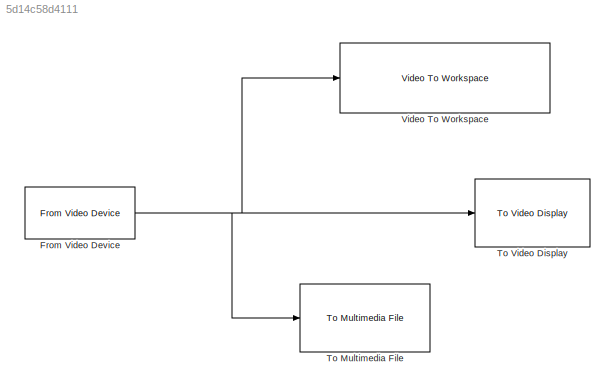
MODEL slx_5d14c58d4111
KIND model
CONFIG AbsTol = auto
CONFIG FixedStep = 0.1
CONFIG MaxStep = auto
CONFIG MinStep = auto
CONFIG RelTol = 1e-3
CONFIG SampleTimeConstraint = Unconstrained
CONFIG Solver = FixedStepAuto
CONFIG SolverMode = Auto
CONFIG SolverName = FixedStepAuto
CONFIG StartTime = 0.0
CONFIG StopTime = inf
BLOCK [Reference] From Video Device  REF=imaqlib/From Video Device
  Ports = [0, 1]
  SourceBlock = imaqlib/From Video Device
  SourceType = From Video Device
  UserDataPersistent = on
BLOCK [Reference] To Multimedia File  REF=dspvision/To Multimedia File
  Ports = [1]
  SourceBlock = dspvision/To Multimedia File
  SourceType = To Multimedia File
BLOCK [Reference] To Video Display  REF=visionsinks/To Video Display
  Ports = [1]
  SourceBlock = visionsinks/To Video Display
  SourceType = To Video Display
BLOCK [Reference] Video To Workspace  REF=visionsinks/Video To Workspace
  Ports = [1]
  SourceBlock = visionsinks/Video To Workspace
  SourceType = Video To Workspace
NET From Video Device:1 -> To Multimedia File:1, To Video Display:1, Video To Workspace:1
note: NET lines group one-source signal fan-out (src -> all destinations, sorted); 1:1 wires keep LINE
